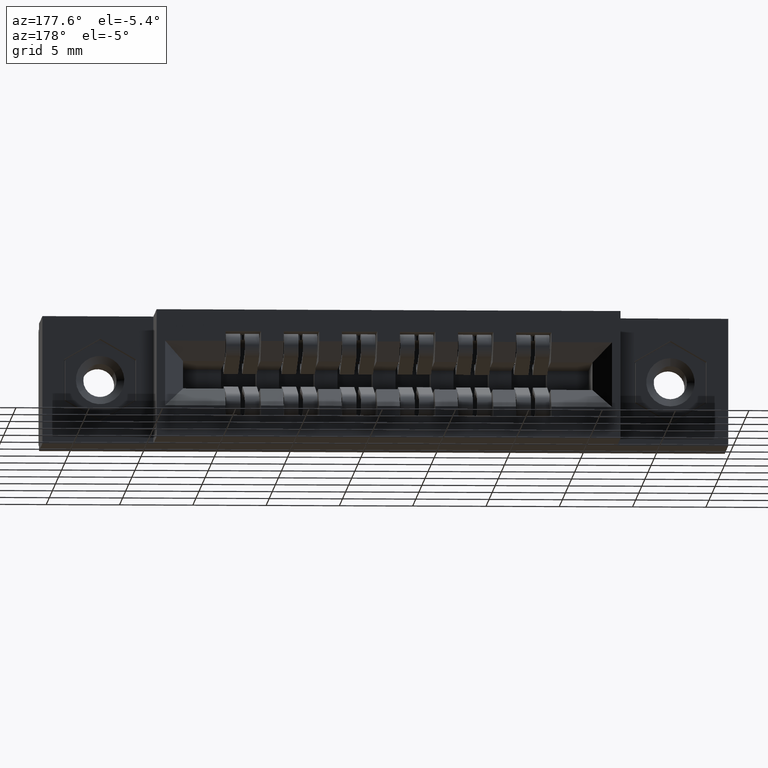
[diagram: clean part render]
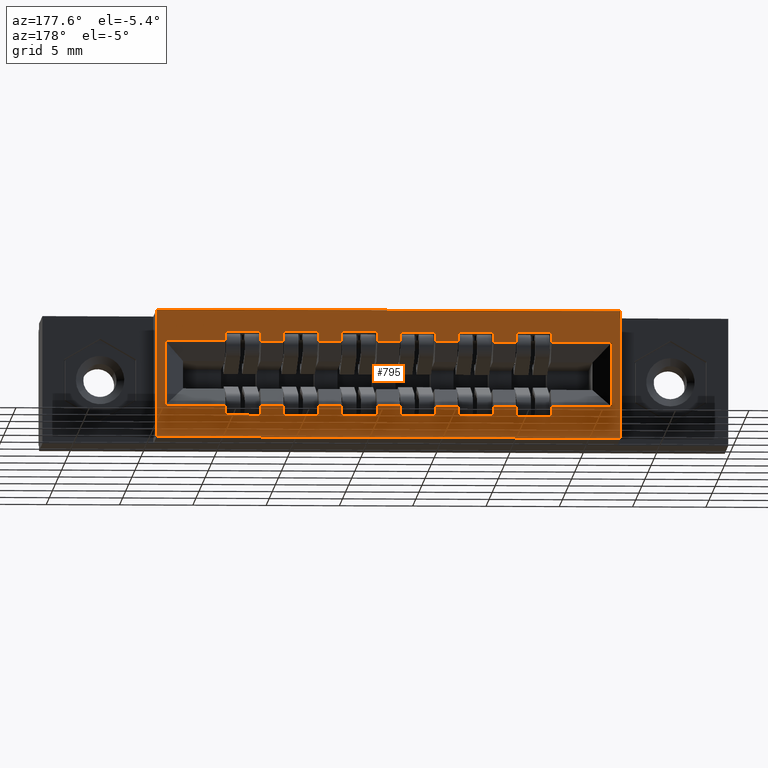
[diagram: same view with one face highlighted and labeled with its STEP entity id]
A machine part, auxiliary view. The second image highlights one B-rep face of the part: STEP entity #795.
In plain terms, the highlighted planar face has unit normal (0, -1, 0).
Its self-contained STEP definition (entity closure, byte-faithful):
#32 = ORIENTED_EDGE ( 'NONE', *, *, #3476, .T. ) ;
#112 = LINE ( 'NONE', #1180, #9920 ) ;
#152 = CARTESIAN_POINT ( 'NONE',  ( 1.107499999999998600, 0.4600000000000000200, -0.08450000000000035300 ) ) ;
#164 = VERTEX_POINT ( 'NONE', #2320 ) ;
#167 = DIRECTION ( 'NONE',  ( -0.0000000000000000000, -0.0000000000000000000, 1.000000000000000000 ) ) ;
#227 = VERTEX_POINT ( 'NONE', #1643 ) ;
#235 = VECTOR ( 'NONE', #4094, 39.37007874015748100 ) ;
#236 = VECTOR ( 'NONE', #5774, 39.37007874015748100 ) ;
#266 = CARTESIAN_POINT ( 'NONE',  ( 0.2979999999999999900, 0.4600000000000000200, 0.0000000000000000000 ) ) ;
#312 = ORIENTED_EDGE ( 'NONE', *, *, #4714, .F. ) ;
#335 = ORIENTED_EDGE ( 'NONE', *, *, #5753, .F. ) ;
#361 = VECTOR ( 'NONE', #3018, 39.37007874015748100 ) ;
#369 = DIRECTION ( 'NONE',  ( 5.973428557574919900E-016, 0.0000000000000000000, -1.000000000000000000 ) ) ;
#469 = EDGE_CURVE ( 'NONE', #6345, #227, #8375, .T. ) ;
#475 = DIRECTION ( 'NONE',  ( 0.0000000000000000000, 0.0000000000000000000, 1.000000000000000000 ) ) ;
#488 = LINE ( 'NONE', #513, #6968 ) ;
#490 = VERTEX_POINT ( 'NONE', #11244 ) ;
#508 = CARTESIAN_POINT ( 'NONE',  ( 1.263499999999998700, 0.4600000000000000200, -0.05850000000000065600 ) ) ;
#513 = CARTESIAN_POINT ( 'NONE',  ( 4.012401740694376300E-018, 0.4600000000000000200, -0.08450000000000063000 ) ) ;
#570 = VECTOR ( 'NONE', #7346, 39.37007874015748100 ) ;
#582 = ORIENTED_EDGE ( 'NONE', *, *, #9502, .F. ) ;
#601 = DIRECTION ( 'NONE',  ( 1.000000000000000000, -0.0000000000000000000, -0.0000000000000000000 ) ) ;
#680 = ORIENTED_EDGE ( 'NONE', *, *, #3738, .T. ) ;
#710 = ORIENTED_EDGE ( 'NONE', *, *, #7370, .T. ) ;
#721 = ORIENTED_EDGE ( 'NONE', *, *, #9614, .T. ) ;
#722 = LINE ( 'NONE', #2271, #8050 ) ;
#755 = DIRECTION ( 'NONE',  ( -0.0000000000000000000, -0.0000000000000000000, 1.000000000000000000 ) ) ;
#771 = CARTESIAN_POINT ( 'NONE',  ( 0.7344999999999987100, 0.4600000000000000200, -0.08450000000000035300 ) ) ;
#795 = ADVANCED_FACE ( 'NONE', ( #8652, #10830 ), #1912, .F. ) ;
#796 = CARTESIAN_POINT ( 'NONE',  ( 0.6394999999999987400, 0.4600000000000000200, -0.05850000000000065600 ) ) ;
#806 = CARTESIAN_POINT ( 'NONE',  ( 0.6394999999999987400, 0.4600000000000000200, -0.2845000000000006400 ) ) ;
#821 = CARTESIAN_POINT ( 'NONE',  ( 4.012401740694376300E-018, 0.4600000000000000200, -0.08450000000000063000 ) ) ;
#834 = DIRECTION ( 'NONE',  ( -1.000000000000000000, 0.0000000000000000000, 1.552186360036513000E-017 ) ) ;
#861 = EDGE_CURVE ( 'NONE', #5071, #9973, #11702, .T. ) ;
#876 = VECTOR ( 'NONE', #10970, 39.37007874015748100 ) ;
#904 = CARTESIAN_POINT ( 'NONE',  ( 0.6394999999999987400, 0.4600000000000000200, -0.08450000000000035300 ) ) ;
#906 = EDGE_CURVE ( 'NONE', #11776, #10478, #5050, .T. ) ;
#958 = ORIENTED_EDGE ( 'NONE', *, *, #10973, .T. ) ;
#983 = VERTEX_POINT ( 'NONE', #7843 ) ;
#1010 = DIRECTION ( 'NONE',  ( 1.000000000000000000, 0.0000000000000000000, 0.0000000000000000000 ) ) ;
#1053 = EDGE_CURVE ( 'NONE', #11305, #3144, #1155, .T. ) ;
#1082 = VECTOR ( 'NONE', #3715, 39.37007874015748100 ) ;
#1143 = VECTOR ( 'NONE', #2168, 39.37007874015748100 ) ;
#1155 = LINE ( 'NONE', #821, #876 ) ;
#1180 = CARTESIAN_POINT ( 'NONE',  ( 0.7954999999999986500, 0.4600000000000000200, -0.2845000000000006400 ) ) ;
#1236 = CARTESIAN_POINT ( 'NONE',  ( 0.5784999999999985700, 0.4600000000000000200, -0.08450000000000035300 ) ) ;
#1264 = CARTESIAN_POINT ( 'NONE',  ( 1.358499999999998700, 0.4600000000000000200, -0.08450000000000035300 ) ) ;
#1293 = ORIENTED_EDGE ( 'NONE', *, *, #5510, .T. ) ;
#1296 = VERTEX_POINT ( 'NONE', #6570 ) ;
#1327 = LINE ( 'NONE', #4556, #11573 ) ;
#1330 = ORIENTED_EDGE ( 'NONE', *, *, #3916, .F. ) ;
#1338 = VERTEX_POINT ( 'NONE', #6649 ) ;
#1405 = DIRECTION ( 'NONE',  ( 0.0000000000000000000, 0.0000000000000000000, 1.000000000000000000 ) ) ;
#1413 = CARTESIAN_POINT ( 'NONE',  ( 1.107499999999998600, 0.4600000000000000200, -0.2845000000000006400 ) ) ;
#1417 = CARTESIAN_POINT ( 'NONE',  ( 1.202499999999998600, 0.4600000000000000200, -0.08450000000000035300 ) ) ;
#1501 = VECTOR ( 'NONE', #10412, 39.37007874015748100 ) ;
#1508 = ORIENTED_EDGE ( 'NONE', *, *, #906, .F. ) ;
#1510 = EDGE_CURVE ( 'NONE', #4788, #8533, #3774, .T. ) ;
#1549 = CARTESIAN_POINT ( 'NONE',  ( 0.7954999999999986500, 0.4600000000000000200, -0.05850000000000065600 ) ) ;
#1567 = ORIENTED_EDGE ( 'NONE', *, *, #4384, .T. ) ;
#1578 = CARTESIAN_POINT ( 'NONE',  ( 0.0000000000000000000, 0.4600000000000000200, -0.2585000000000006700 ) ) ;
#1594 = EDGE_CURVE ( 'NONE', #9394, #4988, #6610, .T. ) ;
#1602 = LINE ( 'NONE', #1578, #10250 ) ;
#1631 = CARTESIAN_POINT ( 'NONE',  ( 0.6394999999999987400, 0.4600000000000000200, -0.2585000000000009500 ) ) ;
#1643 = CARTESIAN_POINT ( 'NONE',  ( 0.7954999999999986500, 0.4600000000000000200, -0.2585000000000009500 ) ) ;
#1661 = CARTESIAN_POINT ( 'NONE',  ( 1.107499999999998600, 0.4600000000000000200, -0.05850000000000065600 ) ) ;
#1674 = CARTESIAN_POINT ( 'NONE',  ( 0.3209999999999986200, 0.4600000000000000200, -0.08450000000000063000 ) ) ;
#1714 = EDGE_CURVE ( 'NONE', #2506, #11822, #6765, .T. ) ;
#1717 = LINE ( 'NONE', #6318, #8766 ) ;
#1746 = EDGE_CURVE ( 'NONE', #3682, #10723, #6905, .T. ) ;
#1775 = DIRECTION ( 'NONE',  ( 0.0000000000000000000, 0.0000000000000000000, 1.000000000000000000 ) ) ;
#1912 = PLANE ( 'NONE',  #4510 ) ;
#1915 = CARTESIAN_POINT ( 'NONE',  ( 0.5784999999999985700, 0.4600000000000000200, -0.2585000000000009500 ) ) ;
#1957 = VECTOR ( 'NONE', #10008, 39.37007874015748100 ) ;
#2059 = DIRECTION ( 'NONE',  ( 1.000000000000000000, -0.0000000000000000000, -0.0000000000000000000 ) ) ;
#2070 = LINE ( 'NONE', #11475, #6103 ) ;
#2071 = ORIENTED_EDGE ( 'NONE', *, *, #1746, .F. ) ;
#2082 = EDGE_CURVE ( 'NONE', #2506, #983, #3305, .T. ) ;
#2092 = CARTESIAN_POINT ( 'NONE',  ( 0.9514999999999985700, 0.4600000000000000200, -0.05850000000000065600 ) ) ;
#2114 = DIRECTION ( 'NONE',  ( 0.0000000000000000000, 0.0000000000000000000, 1.000000000000000000 ) ) ;
#2127 = VECTOR ( 'NONE', #11241, 39.37007874015748100 ) ;
#2166 = LINE ( 'NONE', #8857, #7496 ) ;
#2168 = DIRECTION ( 'NONE',  ( 0.0000000000000000000, 0.0000000000000000000, 1.000000000000000000 ) ) ;
#2220 = VECTOR ( 'NONE', #9586, 39.37007874015748100 ) ;
#2224 = EDGE_CURVE ( 'NONE', #4686, #8380, #8320, .T. ) ;
#2233 = CARTESIAN_POINT ( 'NONE',  ( 1.520999999999998800, 0.4600000000000000200, -0.08450000000000064400 ) ) ;
#2253 = CARTESIAN_POINT ( 'NONE',  ( 1.046499999999998400, 0.4600000000000000200, -0.2845000000000006400 ) ) ;
#2271 = CARTESIAN_POINT ( 'NONE',  ( 0.4834999999999986000, 0.4600000000000000200, -0.2845000000000006400 ) ) ;
#2276 = ORIENTED_EDGE ( 'NONE', *, *, #8670, .T. ) ;
#2292 = CARTESIAN_POINT ( 'NONE',  ( 1.202499999999998600, 0.4600000000000000200, -0.08450000000000035300 ) ) ;
#2293 = VERTEX_POINT ( 'NONE', #6299 ) ;
#2294 = EDGE_CURVE ( 'NONE', #3887, #8533, #4306, .T. ) ;
#2320 = CARTESIAN_POINT ( 'NONE',  ( 0.5784999999999985700, 0.4600000000000000200, -0.2845000000000006400 ) ) ;
#2329 = LINE ( 'NONE', #11207, #9683 ) ;
#2367 = LINE ( 'NONE', #8639, #11018 ) ;
#2373 = CARTESIAN_POINT ( 'NONE',  ( 1.544000000000000300, 0.4600000000000000200, 0.0000000000000000000 ) ) ;
#2388 = ORIENTED_EDGE ( 'NONE', *, *, #8800, .F. ) ;
#2402 = VECTOR ( 'NONE', #755, 39.37007874015748100 ) ;
#2405 = VECTOR ( 'NONE', #601, 39.37007874015748100 ) ;
#2431 = CARTESIAN_POINT ( 'NONE',  ( 0.9514999999999985700, 0.4600000000000000200, -0.05850000000000065600 ) ) ;
#2506 = VERTEX_POINT ( 'NONE', #2511 ) ;
#2511 = CARTESIAN_POINT ( 'NONE',  ( 0.6394999999999987400, 0.4600000000000000200, -0.08450000000000035300 ) ) ;
#2545 = EDGE_CURVE ( 'NONE', #983, #10054, #9024, .T. ) ;
#2548 = LINE ( 'NONE', #10749, #2402 ) ;
#2555 = EDGE_CURVE ( 'NONE', #8830, #2867, #2548, .T. ) ;
#2577 = VERTEX_POINT ( 'NONE', #1674 ) ;
#2649 = LINE ( 'NONE', #1915, #10427 ) ;
#2682 = LINE ( 'NONE', #1549, #3989 ) ;
#2683 = EDGE_CURVE ( 'NONE', #10730, #2293, #6732, .T. ) ;
#2731 = ORIENTED_EDGE ( 'NONE', *, *, #5222, .T. ) ;
#2811 = VECTOR ( 'NONE', #1010, 39.37007874015748100 ) ;
#2836 = DIRECTION ( 'NONE',  ( -0.0000000000000000000, -0.0000000000000000000, 1.000000000000000000 ) ) ;
#2848 = VECTOR ( 'NONE', #5284, 39.37007874015748100 ) ;
#2867 = VERTEX_POINT ( 'NONE', #11254 ) ;
#2870 = DIRECTION ( 'NONE',  ( 0.0000000000000000000, -0.0000000000000000000, -1.000000000000000000 ) ) ;
#2922 = CARTESIAN_POINT ( 'NONE',  ( 0.9514999999999985700, 0.4600000000000000200, -0.08450000000000035300 ) ) ;
#2928 = ORIENTED_EDGE ( 'NONE', *, *, #10810, .F. ) ;
#2945 = VERTEX_POINT ( 'NONE', #3933 ) ;
#2964 = VECTOR ( 'NONE', #10610, 39.37007874015748100 ) ;
#2998 = CARTESIAN_POINT ( 'NONE',  ( 0.4834999999999986000, 0.4600000000000000200, -0.08450000000000035300 ) ) ;
#3009 = LINE ( 'NONE', #3544, #11237 ) ;
#3018 = DIRECTION ( 'NONE',  ( 1.000000000000000000, -0.0000000000000000000, -0.0000000000000000000 ) ) ;
#3062 = EDGE_CURVE ( 'NONE', #2293, #8167, #8748, .T. ) ;
#3073 = CARTESIAN_POINT ( 'NONE',  ( 4.012401740694376300E-018, 0.4600000000000000200, -0.08450000000000063000 ) ) ;
#3144 = VERTEX_POINT ( 'NONE', #771 ) ;
#3186 = VECTOR ( 'NONE', #6819, 39.37007874015748100 ) ;
#3256 = CARTESIAN_POINT ( 'NONE',  ( 0.8904999999999986300, 0.4600000000000000200, -0.2585000000000009500 ) ) ;
#3292 = CARTESIAN_POINT ( 'NONE',  ( 0.8904999999999986300, 0.4600000000000000200, -0.2845000000000006400 ) ) ;
#3295 = CARTESIAN_POINT ( 'NONE',  ( 0.8904999999999986300, 0.4600000000000000200, -0.2585000000000009500 ) ) ;
#3305 = LINE ( 'NONE', #904, #570 ) ;
#3312 = VECTOR ( 'NONE', #7383, 39.37007874015748100 ) ;
#3363 = ORIENTED_EDGE ( 'NONE', *, *, #3764, .F. ) ;
#3397 = LINE ( 'NONE', #4876, #2220 ) ;
#3409 = CARTESIAN_POINT ( 'NONE',  ( 1.107499999999998600, 0.4600000000000000200, -0.05850000000000065600 ) ) ;
#3417 = VECTOR ( 'NONE', #7687, 39.37007874015748100 ) ;
#3453 = VECTOR ( 'NONE', #167, 39.37007874015748100 ) ;
#3476 = EDGE_CURVE ( 'NONE', #8466, #8509, #4297, .T. ) ;
#3492 = CARTESIAN_POINT ( 'NONE',  ( 1.263499999999998700, 0.4600000000000000200, -0.08450000000000035300 ) ) ;
#3497 = ORIENTED_EDGE ( 'NONE', *, *, #2082, .F. ) ;
#3544 = CARTESIAN_POINT ( 'NONE',  ( 1.263499999999998700, 0.4600000000000000200, -0.05850000000000065600 ) ) ;
#3555 = CARTESIAN_POINT ( 'NONE',  ( 1.107499999999998600, 0.4600000000000000200, -0.2585000000000009500 ) ) ;
#3615 = VECTOR ( 'NONE', #6317, 39.37007874015748100 ) ;
#3656 = CARTESIAN_POINT ( 'NONE',  ( 1.263499999999998700, 0.4600000000000000200, -0.2585000000000009500 ) ) ;
#3682 = VERTEX_POINT ( 'NONE', #7494 ) ;
#3706 = CARTESIAN_POINT ( 'NONE',  ( 1.358499999999998700, 0.4600000000000000200, -0.05850000000000065600 ) ) ;
#3715 = DIRECTION ( 'NONE',  ( -0.0000000000000000000, -0.0000000000000000000, 1.000000000000000000 ) ) ;
#3722 = LINE ( 'NONE', #1264, #3417 ) ;
#3738 = EDGE_CURVE ( 'NONE', #5106, #10629, #3998, .T. ) ;
#3743 = VECTOR ( 'NONE', #7503, 39.37007874015748100 ) ;
#3764 = EDGE_CURVE ( 'NONE', #11553, #10629, #11644, .T. ) ;
#3774 = LINE ( 'NONE', #2292, #1143 ) ;
#3793 = VERTEX_POINT ( 'NONE', #9478 ) ;
#3802 = EDGE_CURVE ( 'NONE', #11026, #4345, #3722, .T. ) ;
#3822 = ORIENTED_EDGE ( 'NONE', *, *, #6293, .T. ) ;
#3823 = ORIENTED_EDGE ( 'NONE', *, *, #2683, .T. ) ;
#3827 = ORIENTED_EDGE ( 'NONE', *, *, #8415, .T. ) ;
#3840 = ORIENTED_EDGE ( 'NONE', *, *, #5439, .T. ) ;
#3847 = CARTESIAN_POINT ( 'NONE',  ( 0.9514999999999985700, 0.4600000000000000200, -0.2845000000000006400 ) ) ;
#3851 = EDGE_CURVE ( 'NONE', #11305, #2945, #9156, .T. ) ;
#3857 = ORIENTED_EDGE ( 'NONE', *, *, #2294, .F. ) ;
#3887 = VERTEX_POINT ( 'NONE', #3409 ) ;
#3916 = EDGE_CURVE ( 'NONE', #2945, #8167, #2682, .T. ) ;
#3918 = CARTESIAN_POINT ( 'NONE',  ( 0.2980000000000002100, 0.4600000000000000200, -0.3430000000000000300 ) ) ;
#3922 = ORIENTED_EDGE ( 'NONE', *, *, #7649, .F. ) ;
#3933 = CARTESIAN_POINT ( 'NONE',  ( 0.7954999999999986500, 0.4600000000000000200, -0.05850000000000065600 ) ) ;
#3964 = EDGE_CURVE ( 'NONE', #11776, #490, #6135, .T. ) ;
#3976 = LINE ( 'NONE', #2092, #361 ) ;
#3989 = VECTOR ( 'NONE', #10571, 39.37007874015748100 ) ;
#3998 = LINE ( 'NONE', #5819, #236 ) ;
#4019 = CARTESIAN_POINT ( 'NONE',  ( 1.046499999999998400, 0.4600000000000000200, -0.08450000000000035300 ) ) ;
#4029 = DIRECTION ( 'NONE',  ( -0.0000000000000000000, -0.0000000000000000000, 1.000000000000000000 ) ) ;
#4055 = EDGE_CURVE ( 'NONE', #5071, #3887, #5424, .T. ) ;
#4093 = CARTESIAN_POINT ( 'NONE',  ( 4.012401740694376300E-018, 0.4600000000000000200, -0.08450000000000063000 ) ) ;
#4094 = DIRECTION ( 'NONE',  ( 0.0000000000000000000, 0.0000000000000000000, 1.000000000000000000 ) ) ;
#4135 = CARTESIAN_POINT ( 'NONE',  ( 1.263499999999998700, 0.4600000000000000200, -0.2585000000000009500 ) ) ;
#4210 = VECTOR ( 'NONE', #5809, 39.37007874015748100 ) ;
#4254 = EDGE_CURVE ( 'NONE', #9028, #5106, #11917, .T. ) ;
#4297 = LINE ( 'NONE', #7868, #2405 ) ;
#4298 = EDGE_CURVE ( 'NONE', #1296, #4549, #4827, .T. ) ;
#4302 = CARTESIAN_POINT ( 'NONE',  ( 1.202499999999998600, 0.4600000000000000200, -0.2585000000000009500 ) ) ;
#4306 = LINE ( 'NONE', #1661, #2848 ) ;
#4340 = CARTESIAN_POINT ( 'NONE',  ( 0.0000000000000000000, 0.4600000000000000200, -0.2585000000000006700 ) ) ;
#4344 = CARTESIAN_POINT ( 'NONE',  ( 0.7344999999999987100, 0.4600000000000000200, -0.05850000000000065600 ) ) ;
#4345 = VERTEX_POINT ( 'NONE', #3706 ) ;
#4384 = EDGE_CURVE ( 'NONE', #4753, #10386, #6992, .T. ) ;
#4403 = CARTESIAN_POINT ( 'NONE',  ( 0.7954999999999986500, 0.4600000000000000200, -0.08450000000000035300 ) ) ;
#4408 = CARTESIAN_POINT ( 'NONE',  ( 1.107499999999998600, 0.4600000000000000200, -0.08450000000000035300 ) ) ;
#4435 = LINE ( 'NONE', #8411, #2127 ) ;
#4437 = ORIENTED_EDGE ( 'NONE', *, *, #10056, .T. ) ;
#4510 = AXIS2_PLACEMENT_3D ( 'NONE', #7492, #10217, #2870 ) ;
#4549 = VERTEX_POINT ( 'NONE', #3656 ) ;
#4556 = CARTESIAN_POINT ( 'NONE',  ( 1.520999999999998800, 0.4600000000000000200, -0.3430000000000000300 ) ) ;
#4607 = VECTOR ( 'NONE', #7433, 39.37007874015748100 ) ;
#4659 = EDGE_LOOP ( 'NONE', ( #10771, #4437, #10572, #4803, #7823, #11204, #7643, #3922, #11663, #2731, #9824, #3857, #6602, #9133, #4925, #312, #582, #3823, #5003, #1330, #5437, #11177, #958, #8623, #3497, #10890, #9239, #2071, #2928, #9951, #1293, #1567, #2388, #5255, #3840, #2276, #335, #32, #6453, #4950, #7961, #5321, #5828, #680, #3363, #6630, #8994, #3827, #1508, #4677, #710, #721 ) ) ;
#4677 = ORIENTED_EDGE ( 'NONE', *, *, #3964, .T. ) ;
#4686 = VERTEX_POINT ( 'NONE', #2253 ) ;
#4707 = CARTESIAN_POINT ( 'NONE',  ( 0.9514999999999985700, 0.4600000000000000200, -0.2585000000000009500 ) ) ;
#4714 = EDGE_CURVE ( 'NONE', #8963, #10474, #3976, .T. ) ;
#4747 = CARTESIAN_POINT ( 'NONE',  ( 1.544000000000000300, 0.4600000000000000200, 0.0000000000000000000 ) ) ;
#4748 = EDGE_CURVE ( 'NONE', #11553, #4686, #3397, .T. ) ;
#4753 = VERTEX_POINT ( 'NONE', #7676 ) ;
#4788 = VERTEX_POINT ( 'NONE', #1417 ) ;
#4803 = ORIENTED_EDGE ( 'NONE', *, *, #11118, .T. ) ;
#4827 = LINE ( 'NONE', #4135, #1082 ) ;
#4848 = CARTESIAN_POINT ( 'NONE',  ( 1.544000000000000300, 0.4600000000000000200, -0.3429999999999997500 ) ) ;
#4876 = CARTESIAN_POINT ( 'NONE',  ( 0.9514999999999985700, 0.4600000000000000200, -0.2845000000000006400 ) ) ;
#4925 = ORIENTED_EDGE ( 'NONE', *, *, #9122, .T. ) ;
#4950 = ORIENTED_EDGE ( 'NONE', *, *, #9784, .T. ) ;
#4988 = VERTEX_POINT ( 'NONE', #4747 ) ;
#5003 = ORIENTED_EDGE ( 'NONE', *, *, #3062, .T. ) ;
#5045 = DIRECTION ( 'NONE',  ( -0.0000000000000000000, -0.0000000000000000000, 1.000000000000000000 ) ) ;
#5050 = LINE ( 'NONE', #7642, #9085 ) ;
#5071 = VERTEX_POINT ( 'NONE', #152 ) ;
#5078 = CARTESIAN_POINT ( 'NONE',  ( 1.520999999999998800, 0.4600000000000000200, -0.2585000000000006700 ) ) ;
#5087 = DIRECTION ( 'NONE',  ( 1.000000000000000000, -0.0000000000000000000, -0.0000000000000000000 ) ) ;
#5094 = EDGE_CURVE ( 'NONE', #5932, #5567, #2367, .T. ) ;
#5106 = VERTEX_POINT ( 'NONE', #3256 ) ;
#5126 = EDGE_CURVE ( 'NONE', #11822, #10723, #6979, .T. ) ;
#5148 = CARTESIAN_POINT ( 'NONE',  ( 0.5784999999999985700, 0.4600000000000000200, -0.08450000000000035300 ) ) ;
#5157 = VECTOR ( 'NONE', #369, 39.37007874015748100 ) ;
#5179 = DIRECTION ( 'NONE',  ( -0.0000000000000000000, -0.0000000000000000000, 1.000000000000000000 ) ) ;
#5222 = EDGE_CURVE ( 'NONE', #5932, #4788, #488, .T. ) ;
#5255 = ORIENTED_EDGE ( 'NONE', *, *, #7345, .T. ) ;
#5284 = DIRECTION ( 'NONE',  ( 1.000000000000000000, -0.0000000000000000000, -0.0000000000000000000 ) ) ;
#5289 = DIRECTION ( 'NONE',  ( 0.0000000000000000000, 0.0000000000000000000, 1.000000000000000000 ) ) ;
#5321 = ORIENTED_EDGE ( 'NONE', *, *, #8170, .T. ) ;
#5357 = CARTESIAN_POINT ( 'NONE',  ( 1.202499999999998600, 0.4600000000000000200, -0.05850000000000065600 ) ) ;
#5380 = CARTESIAN_POINT ( 'NONE',  ( 0.0000000000000000000, 0.4600000000000000200, -0.3430000000000000300 ) ) ;
#5424 = LINE ( 'NONE', #4408, #1957 ) ;
#5437 = ORIENTED_EDGE ( 'NONE', *, *, #3851, .F. ) ;
#5439 = EDGE_CURVE ( 'NONE', #164, #3793, #2649, .T. ) ;
#5502 = DIRECTION ( 'NONE',  ( 1.000000000000000000, 0.0000000000000000000, 0.0000000000000000000 ) ) ;
#5510 = EDGE_CURVE ( 'NONE', #2577, #4753, #8826, .T. ) ;
#5567 = VERTEX_POINT ( 'NONE', #508 ) ;
#5605 = CARTESIAN_POINT ( 'NONE',  ( 0.0000000000000000000, 0.4600000000000000200, -0.2585000000000006700 ) ) ;
#5753 = EDGE_CURVE ( 'NONE', #8466, #6554, #8814, .T. ) ;
#5774 = DIRECTION ( 'NONE',  ( 1.000000000000000000, 0.0000000000000000000, 0.0000000000000000000 ) ) ;
#5809 = DIRECTION ( 'NONE',  ( 1.000000000000000000, 0.0000000000000000000, 0.0000000000000000000 ) ) ;
#5819 = CARTESIAN_POINT ( 'NONE',  ( 0.0000000000000000000, 0.4600000000000000200, -0.2585000000000006700 ) ) ;
#5828 = ORIENTED_EDGE ( 'NONE', *, *, #4254, .T. ) ;
#5866 = VECTOR ( 'NONE', #7986, 39.37007874015748100 ) ;
#5882 = VECTOR ( 'NONE', #9991, 39.37007874015748100 ) ;
#5890 = LINE ( 'NONE', #3073, #3312 ) ;
#5897 = LINE ( 'NONE', #11332, #3453 ) ;
#5932 = VERTEX_POINT ( 'NONE', #3492 ) ;
#5975 = CARTESIAN_POINT ( 'NONE',  ( 0.7954999999999986500, 0.4600000000000000200, -0.08450000000000035300 ) ) ;
#6103 = VECTOR ( 'NONE', #4029, 39.37007874015748100 ) ;
#6123 = DIRECTION ( 'NONE',  ( -0.0000000000000000000, -0.0000000000000000000, 1.000000000000000000 ) ) ;
#6135 = LINE ( 'NONE', #11879, #10907 ) ;
#6201 = VECTOR ( 'NONE', #8795, 39.37007874015748100 ) ;
#6225 = LINE ( 'NONE', #7295, #11725 ) ;
#6293 = EDGE_CURVE ( 'NONE', #11116, #4988, #2329, .T. ) ;
#6299 = CARTESIAN_POINT ( 'NONE',  ( 0.8904999999999986300, 0.4600000000000000200, -0.08450000000000035300 ) ) ;
#6307 = CARTESIAN_POINT ( 'NONE',  ( 0.2979999999999999900, 0.4600000000000000200, 0.0000000000000000000 ) ) ;
#6317 = DIRECTION ( 'NONE',  ( -1.000000000000000000, -0.0000000000000000000, -0.0000000000000000000 ) ) ;
#6318 = CARTESIAN_POINT ( 'NONE',  ( 0.7344999999999987100, 0.4600000000000000200, -0.08450000000000035300 ) ) ;
#6319 = CARTESIAN_POINT ( 'NONE',  ( 4.012401740694376300E-018, 0.4600000000000000200, -0.08450000000000063000 ) ) ;
#6328 = VECTOR ( 'NONE', #5502, 39.37007874015748100 ) ;
#6345 = VERTEX_POINT ( 'NONE', #11870 ) ;
#6364 = CARTESIAN_POINT ( 'NONE',  ( 1.046499999999998400, 0.4600000000000000200, -0.05850000000000065600 ) ) ;
#6453 = ORIENTED_EDGE ( 'NONE', *, *, #10504, .T. ) ;
#6554 = VERTEX_POINT ( 'NONE', #7629 ) ;
#6570 = CARTESIAN_POINT ( 'NONE',  ( 1.263499999999998700, 0.4600000000000000200, -0.2845000000000006400 ) ) ;
#6602 = ORIENTED_EDGE ( 'NONE', *, *, #4055, .F. ) ;
#6608 = LINE ( 'NONE', #2998, #11529 ) ;
#6610 = LINE ( 'NONE', #2373, #11383 ) ;
#6630 = ORIENTED_EDGE ( 'NONE', *, *, #4748, .T. ) ;
#6649 = CARTESIAN_POINT ( 'NONE',  ( 0.4834999999999986000, 0.4600000000000000200, -0.08450000000000035300 ) ) ;
#6679 = CARTESIAN_POINT ( 'NONE',  ( 0.0000000000000000000, 0.4600000000000000200, -0.2585000000000006700 ) ) ;
#6732 = LINE ( 'NONE', #6319, #8730 ) ;
#6765 = LINE ( 'NONE', #11109, #7052 ) ;
#6819 = DIRECTION ( 'NONE',  ( -1.000000000000000000, 0.0000000000000000000, 1.552186360036513000E-017 ) ) ;
#6860 = CARTESIAN_POINT ( 'NONE',  ( 0.9514999999999985700, 0.4600000000000000200, -0.2585000000000009500 ) ) ;
#6865 = CARTESIAN_POINT ( 'NONE',  ( 1.202499999999998600, 0.4600000000000000200, -0.2585000000000009500 ) ) ;
#6905 = LINE ( 'NONE', #8317, #4607 ) ;
#6950 = CARTESIAN_POINT ( 'NONE',  ( 1.358499999999998700, 0.4600000000000000200, -0.2845000000000006400 ) ) ;
#6968 = VECTOR ( 'NONE', #10951, 39.37007874015748100 ) ;
#6979 = LINE ( 'NONE', #1236, #11304 ) ;
#6992 = LINE ( 'NONE', #5605, #2811 ) ;
#7026 = ORIENTED_EDGE ( 'NONE', *, *, #8072, .F. ) ;
#7052 = VECTOR ( 'NONE', #11146, 39.37007874015748100 ) ;
#7103 = DIRECTION ( 'NONE',  ( -0.0000000000000000000, -0.0000000000000000000, 1.000000000000000000 ) ) ;
#7202 = VECTOR ( 'NONE', #11634, 39.37007874015748100 ) ;
#7234 = DIRECTION ( 'NONE',  ( 0.0000000000000000000, 0.0000000000000000000, 1.000000000000000000 ) ) ;
#7295 = CARTESIAN_POINT ( 'NONE',  ( 1.046499999999998400, 0.4600000000000000200, -0.08450000000000035300 ) ) ;
#7345 = EDGE_CURVE ( 'NONE', #9987, #164, #722, .T. ) ;
#7346 = DIRECTION ( 'NONE',  ( 0.0000000000000000000, 0.0000000000000000000, 1.000000000000000000 ) ) ;
#7370 = EDGE_CURVE ( 'NONE', #490, #8952, #10525, .T. ) ;
#7383 = DIRECTION ( 'NONE',  ( -1.000000000000000000, 0.0000000000000000000, 1.552186360036513000E-017 ) ) ;
#7422 = VECTOR ( 'NONE', #5179, 39.37007874015748100 ) ;
#7433 = DIRECTION ( 'NONE',  ( 1.000000000000000000, -0.0000000000000000000, -0.0000000000000000000 ) ) ;
#7492 = CARTESIAN_POINT ( 'NONE',  ( 0.0000000000000000000, 0.4600000000000000200, -0.3430000000000000300 ) ) ;
#7494 = CARTESIAN_POINT ( 'NONE',  ( 0.4834999999999986000, 0.4600000000000000200, -0.05850000000000065600 ) ) ;
#7496 = VECTOR ( 'NONE', #5289, 39.37007874015748100 ) ;
#7503 = DIRECTION ( 'NONE',  ( 1.000000000000000000, 0.0000000000000000000, 0.0000000000000000000 ) ) ;
#7523 = CARTESIAN_POINT ( 'NONE',  ( 0.7344999999999987100, 0.4600000000000000200, -0.2585000000000009500 ) ) ;
#7569 = CARTESIAN_POINT ( 'NONE',  ( 0.3209999999999986200, 0.4600000000000000200, -0.3430000000000000300 ) ) ;
#7591 = LINE ( 'NONE', #6307, #5157 ) ;
#7629 = CARTESIAN_POINT ( 'NONE',  ( 0.6394999999999987400, 0.4600000000000000200, -0.2585000000000009500 ) ) ;
#7642 = CARTESIAN_POINT ( 'NONE',  ( 1.107499999999998600, 0.4600000000000000200, -0.2585000000000009500 ) ) ;
#7643 = ORIENTED_EDGE ( 'NONE', *, *, #3802, .T. ) ;
#7649 = EDGE_CURVE ( 'NONE', #5567, #4345, #3009, .T. ) ;
#7666 = VECTOR ( 'NONE', #7103, 39.37007874015748100 ) ;
#7674 = EDGE_CURVE ( 'NONE', #9394, #11520, #9496, .T. ) ;
#7676 = CARTESIAN_POINT ( 'NONE',  ( 0.3209999999999986200, 0.4600000000000000200, -0.2585000000000006700 ) ) ;
#7687 = DIRECTION ( 'NONE',  ( 0.0000000000000000000, 0.0000000000000000000, 1.000000000000000000 ) ) ;
#7699 = EDGE_CURVE ( 'NONE', #1338, #2577, #5890, .T. ) ;
#7823 = ORIENTED_EDGE ( 'NONE', *, *, #9108, .T. ) ;
#7843 = CARTESIAN_POINT ( 'NONE',  ( 0.6394999999999987400, 0.4600000000000000200, -0.05850000000000065600 ) ) ;
#7864 = CARTESIAN_POINT ( 'NONE',  ( 1.263499999999998700, 0.4600000000000000200, -0.2845000000000006400 ) ) ;
#7868 = CARTESIAN_POINT ( 'NONE',  ( 0.6394999999999987400, 0.4600000000000000200, -0.2845000000000006400 ) ) ;
#7878 = CARTESIAN_POINT ( 'NONE',  ( 0.5784999999999985700, 0.4600000000000000200, -0.05850000000000065600 ) ) ;
#7915 = LINE ( 'NONE', #7864, #6201 ) ;
#7937 = VECTOR ( 'NONE', #10007, 39.37007874015748100 ) ;
#7961 = ORIENTED_EDGE ( 'NONE', *, *, #469, .F. ) ;
#7986 = DIRECTION ( 'NONE',  ( 1.000000000000000000, -0.0000000000000000000, -0.0000000000000000000 ) ) ;
#8003 = DIRECTION ( 'NONE',  ( 1.000000000000000000, 0.0000000000000000000, 0.0000000000000000000 ) ) ;
#8050 = VECTOR ( 'NONE', #5087, 39.37007874015748100 ) ;
#8072 = EDGE_CURVE ( 'NONE', #11116, #11520, #7591, .T. ) ;
#8123 = CARTESIAN_POINT ( 'NONE',  ( 0.4834999999999986000, 0.4600000000000000200, -0.2585000000000009500 ) ) ;
#8167 = VERTEX_POINT ( 'NONE', #9474 ) ;
#8170 = EDGE_CURVE ( 'NONE', #6345, #9028, #112, .T. ) ;
#8217 = CARTESIAN_POINT ( 'NONE',  ( 0.7954999999999986500, 0.4600000000000000200, -0.2585000000000009500 ) ) ;
#8243 = VERTEX_POINT ( 'NONE', #7523 ) ;
#8301 = VERTEX_POINT ( 'NONE', #5078 ) ;
#8317 = CARTESIAN_POINT ( 'NONE',  ( 0.4834999999999986000, 0.4600000000000000200, -0.05850000000000065600 ) ) ;
#8320 = LINE ( 'NONE', #9470, #11367 ) ;
#8323 = LINE ( 'NONE', #9092, #5882 ) ;
#8375 = LINE ( 'NONE', #8217, #7937 ) ;
#8380 = VERTEX_POINT ( 'NONE', #8663 ) ;
#8411 = CARTESIAN_POINT ( 'NONE',  ( 4.012401740694376300E-018, 0.4600000000000000200, -0.08450000000000063000 ) ) ;
#8415 = EDGE_CURVE ( 'NONE', #8380, #10478, #8323, .T. ) ;
#8466 = VERTEX_POINT ( 'NONE', #806 ) ;
#8509 = VERTEX_POINT ( 'NONE', #10837 ) ;
#8533 = VERTEX_POINT ( 'NONE', #5357 ) ;
#8560 = EDGE_LOOP ( 'NONE', ( #3822, #8977, #8576, #7026 ) ) ;
#8576 = ORIENTED_EDGE ( 'NONE', *, *, #7674, .T. ) ;
#8579 = DIRECTION ( 'NONE',  ( -0.0000000000000000000, -0.0000000000000000000, 1.000000000000000000 ) ) ;
#8623 = ORIENTED_EDGE ( 'NONE', *, *, #2545, .F. ) ;
#8639 = CARTESIAN_POINT ( 'NONE',  ( 1.263499999999998700, 0.4600000000000000200, -0.08450000000000035300 ) ) ;
#8652 = FACE_OUTER_BOUND ( 'NONE', #8560, .T. ) ;
#8663 = CARTESIAN_POINT ( 'NONE',  ( 1.046499999999998400, 0.4600000000000000200, -0.2585000000000009500 ) ) ;
#8670 = EDGE_CURVE ( 'NONE', #3793, #6554, #9035, .T. ) ;
#8730 = VECTOR ( 'NONE', #834, 39.37007874015748100 ) ;
#8748 = LINE ( 'NONE', #10532, #235 ) ;
#8766 = VECTOR ( 'NONE', #7234, 39.37007874015748100 ) ;
#8795 = DIRECTION ( 'NONE',  ( 1.000000000000000000, -0.0000000000000000000, -0.0000000000000000000 ) ) ;
#8800 = EDGE_CURVE ( 'NONE', #9987, #10386, #2070, .T. ) ;
#8814 = LINE ( 'NONE', #1631, #7666 ) ;
#8826 = LINE ( 'NONE', #7569, #1501 ) ;
#8830 = VERTEX_POINT ( 'NONE', #6950 ) ;
#8857 = CARTESIAN_POINT ( 'NONE',  ( 0.9514999999999985700, 0.4600000000000000200, -0.08450000000000035300 ) ) ;
#8943 = DIRECTION ( 'NONE',  ( 1.000000000000000000, -0.0000000000000000000, -0.0000000000000000000 ) ) ;
#8952 = VERTEX_POINT ( 'NONE', #4302 ) ;
#8963 = VERTEX_POINT ( 'NONE', #2431 ) ;
#8977 = ORIENTED_EDGE ( 'NONE', *, *, #1594, .F. ) ;
#8994 = ORIENTED_EDGE ( 'NONE', *, *, #2224, .T. ) ;
#9024 = LINE ( 'NONE', #796, #5866 ) ;
#9028 = VERTEX_POINT ( 'NONE', #3292 ) ;
#9035 = LINE ( 'NONE', #6679, #3743 ) ;
#9085 = VECTOR ( 'NONE', #5045, 39.37007874015748100 ) ;
#9092 = CARTESIAN_POINT ( 'NONE',  ( 0.0000000000000000000, 0.4600000000000000200, -0.2585000000000006700 ) ) ;
#9108 = EDGE_CURVE ( 'NONE', #8301, #9955, #1327, .T. ) ;
#9122 = EDGE_CURVE ( 'NONE', #9973, #10474, #6225, .T. ) ;
#9133 = ORIENTED_EDGE ( 'NONE', *, *, #861, .T. ) ;
#9156 = LINE ( 'NONE', #5975, #2964 ) ;
#9165 = VECTOR ( 'NONE', #9517, 39.37007874015748100 ) ;
#9239 = ORIENTED_EDGE ( 'NONE', *, *, #5126, .T. ) ;
#9392 = CARTESIAN_POINT ( 'NONE',  ( 1.358499999999998700, 0.4600000000000000200, -0.08450000000000035300 ) ) ;
#9394 = VERTEX_POINT ( 'NONE', #4848 ) ;
#9470 = CARTESIAN_POINT ( 'NONE',  ( 1.046499999999998400, 0.4600000000000000200, -0.2585000000000009500 ) ) ;
#9474 = CARTESIAN_POINT ( 'NONE',  ( 0.8904999999999986300, 0.4600000000000000200, -0.05850000000000065600 ) ) ;
#9478 = CARTESIAN_POINT ( 'NONE',  ( 0.5784999999999985700, 0.4600000000000000200, -0.2585000000000009500 ) ) ;
#9496 = LINE ( 'NONE', #5380, #3615 ) ;
#9502 = EDGE_CURVE ( 'NONE', #10730, #8963, #2166, .T. ) ;
#9517 = DIRECTION ( 'NONE',  ( -0.0000000000000000000, -0.0000000000000000000, 1.000000000000000000 ) ) ;
#9524 = CARTESIAN_POINT ( 'NONE',  ( 0.4834999999999986000, 0.4600000000000000200, -0.2845000000000006400 ) ) ;
#9586 = DIRECTION ( 'NONE',  ( 1.000000000000000000, -0.0000000000000000000, -0.0000000000000000000 ) ) ;
#9614 = EDGE_CURVE ( 'NONE', #8952, #4549, #11406, .T. ) ;
#9683 = VECTOR ( 'NONE', #10358, 39.37007874015748100 ) ;
#9784 = EDGE_CURVE ( 'NONE', #8243, #227, #1602, .T. ) ;
#9824 = ORIENTED_EDGE ( 'NONE', *, *, #1510, .T. ) ;
#9920 = VECTOR ( 'NONE', #2059, 39.37007874015748100 ) ;
#9932 = DIRECTION ( 'NONE',  ( 1.000000000000000000, -0.0000000000000000000, -0.0000000000000000000 ) ) ;
#9951 = ORIENTED_EDGE ( 'NONE', *, *, #7699, .T. ) ;
#9955 = VERTEX_POINT ( 'NONE', #2233 ) ;
#9973 = VERTEX_POINT ( 'NONE', #4019 ) ;
#9987 = VERTEX_POINT ( 'NONE', #9524 ) ;
#9991 = DIRECTION ( 'NONE',  ( 1.000000000000000000, 0.0000000000000000000, 0.0000000000000000000 ) ) ;
#10007 = DIRECTION ( 'NONE',  ( -0.0000000000000000000, -0.0000000000000000000, 1.000000000000000000 ) ) ;
#10008 = DIRECTION ( 'NONE',  ( 0.0000000000000000000, 0.0000000000000000000, 1.000000000000000000 ) ) ;
#10054 = VERTEX_POINT ( 'NONE', #4344 ) ;
#10056 = EDGE_CURVE ( 'NONE', #1296, #8830, #7915, .T. ) ;
#10217 = DIRECTION ( 'NONE',  ( 0.0000000000000000000, -1.000000000000000000, 0.0000000000000000000 ) ) ;
#10250 = VECTOR ( 'NONE', #8003, 39.37007874015748100 ) ;
#10358 = DIRECTION ( 'NONE',  ( 1.000000000000000000, 0.0000000000000000000, 0.0000000000000000000 ) ) ;
#10386 = VERTEX_POINT ( 'NONE', #8123 ) ;
#10412 = DIRECTION ( 'NONE',  ( 0.0000000000000000000, 0.0000000000000000000, -1.000000000000000000 ) ) ;
#10427 = VECTOR ( 'NONE', #2836, 39.37007874015748100 ) ;
#10474 = VERTEX_POINT ( 'NONE', #6364 ) ;
#10478 = VERTEX_POINT ( 'NONE', #3555 ) ;
#10504 = EDGE_CURVE ( 'NONE', #8509, #8243, #5897, .T. ) ;
#10525 = LINE ( 'NONE', #6865, #7202 ) ;
#10532 = CARTESIAN_POINT ( 'NONE',  ( 0.8904999999999986300, 0.4600000000000000200, -0.08450000000000035300 ) ) ;
#10571 = DIRECTION ( 'NONE',  ( 1.000000000000000000, -0.0000000000000000000, -0.0000000000000000000 ) ) ;
#10572 = ORIENTED_EDGE ( 'NONE', *, *, #2555, .T. ) ;
#10610 = DIRECTION ( 'NONE',  ( 0.0000000000000000000, 0.0000000000000000000, 1.000000000000000000 ) ) ;
#10629 = VERTEX_POINT ( 'NONE', #4707 ) ;
#10641 = LINE ( 'NONE', #4340, #6328 ) ;
#10723 = VERTEX_POINT ( 'NONE', #7878 ) ;
#10730 = VERTEX_POINT ( 'NONE', #2922 ) ;
#10749 = CARTESIAN_POINT ( 'NONE',  ( 1.358499999999998700, 0.4600000000000000200, -0.2585000000000009500 ) ) ;
#10771 = ORIENTED_EDGE ( 'NONE', *, *, #4298, .F. ) ;
#10810 = EDGE_CURVE ( 'NONE', #1338, #3682, #6608, .T. ) ;
#10830 = FACE_BOUND ( 'NONE', #4659, .T. ) ;
#10837 = CARTESIAN_POINT ( 'NONE',  ( 0.7344999999999987100, 0.4600000000000000200, -0.2845000000000006400 ) ) ;
#10890 = ORIENTED_EDGE ( 'NONE', *, *, #1714, .T. ) ;
#10907 = VECTOR ( 'NONE', #8943, 39.37007874015748100 ) ;
#10951 = DIRECTION ( 'NONE',  ( -1.000000000000000000, 0.0000000000000000000, 1.552186360036513000E-017 ) ) ;
#10961 = DIRECTION ( 'NONE',  ( 0.0000000000000000000, 0.0000000000000000000, 1.000000000000000000 ) ) ;
#10970 = DIRECTION ( 'NONE',  ( -1.000000000000000000, 0.0000000000000000000, 1.552186360036513000E-017 ) ) ;
#10973 = EDGE_CURVE ( 'NONE', #3144, #10054, #1717, .T. ) ;
#11018 = VECTOR ( 'NONE', #475, 39.37007874015748100 ) ;
#11026 = VERTEX_POINT ( 'NONE', #9392 ) ;
#11109 = CARTESIAN_POINT ( 'NONE',  ( 4.012401740694376300E-018, 0.4600000000000000200, -0.08450000000000063000 ) ) ;
#11116 = VERTEX_POINT ( 'NONE', #266 ) ;
#11118 = EDGE_CURVE ( 'NONE', #2867, #8301, #10641, .T. ) ;
#11146 = DIRECTION ( 'NONE',  ( -1.000000000000000000, 0.0000000000000000000, 1.552186360036513000E-017 ) ) ;
#11177 = ORIENTED_EDGE ( 'NONE', *, *, #1053, .T. ) ;
#11204 = ORIENTED_EDGE ( 'NONE', *, *, #11525, .T. ) ;
#11207 = CARTESIAN_POINT ( 'NONE',  ( 0.0000000000000000000, 0.4600000000000000200, 0.0000000000000000000 ) ) ;
#11237 = VECTOR ( 'NONE', #9932, 39.37007874015748100 ) ;
#11241 = DIRECTION ( 'NONE',  ( -1.000000000000000000, 0.0000000000000000000, 1.552186360036513000E-017 ) ) ;
#11244 = CARTESIAN_POINT ( 'NONE',  ( 1.202499999999998600, 0.4600000000000000200, -0.2845000000000006400 ) ) ;
#11254 = CARTESIAN_POINT ( 'NONE',  ( 1.358499999999998700, 0.4600000000000000200, -0.2585000000000009500 ) ) ;
#11304 = VECTOR ( 'NONE', #1405, 39.37007874015748100 ) ;
#11305 = VERTEX_POINT ( 'NONE', #4403 ) ;
#11331 = CARTESIAN_POINT ( 'NONE',  ( 0.0000000000000000000, 0.4600000000000000200, -0.2585000000000006700 ) ) ;
#11332 = CARTESIAN_POINT ( 'NONE',  ( 0.7344999999999987100, 0.4600000000000000200, -0.2585000000000009500 ) ) ;
#11367 = VECTOR ( 'NONE', #8579, 39.37007874015748100 ) ;
#11383 = VECTOR ( 'NONE', #6123, 39.37007874015748100 ) ;
#11406 = LINE ( 'NONE', #11331, #4210 ) ;
#11475 = CARTESIAN_POINT ( 'NONE',  ( 0.4834999999999986000, 0.4600000000000000200, -0.2585000000000009500 ) ) ;
#11520 = VERTEX_POINT ( 'NONE', #3918 ) ;
#11525 = EDGE_CURVE ( 'NONE', #9955, #11026, #4435, .T. ) ;
#11529 = VECTOR ( 'NONE', #2114, 39.37007874015748100 ) ;
#11553 = VERTEX_POINT ( 'NONE', #3847 ) ;
#11573 = VECTOR ( 'NONE', #10961, 39.37007874015748100 ) ;
#11634 = DIRECTION ( 'NONE',  ( -0.0000000000000000000, -0.0000000000000000000, 1.000000000000000000 ) ) ;
#11644 = LINE ( 'NONE', #6860, #9165 ) ;
#11663 = ORIENTED_EDGE ( 'NONE', *, *, #5094, .F. ) ;
#11702 = LINE ( 'NONE', #4093, #3186 ) ;
#11725 = VECTOR ( 'NONE', #1775, 39.37007874015748100 ) ;
#11776 = VERTEX_POINT ( 'NONE', #1413 ) ;
#11822 = VERTEX_POINT ( 'NONE', #5148 ) ;
#11870 = CARTESIAN_POINT ( 'NONE',  ( 0.7954999999999986500, 0.4600000000000000200, -0.2845000000000006400 ) ) ;
#11879 = CARTESIAN_POINT ( 'NONE',  ( 1.107499999999998600, 0.4600000000000000200, -0.2845000000000006400 ) ) ;
#11917 = LINE ( 'NONE', #3295, #7422 ) ;